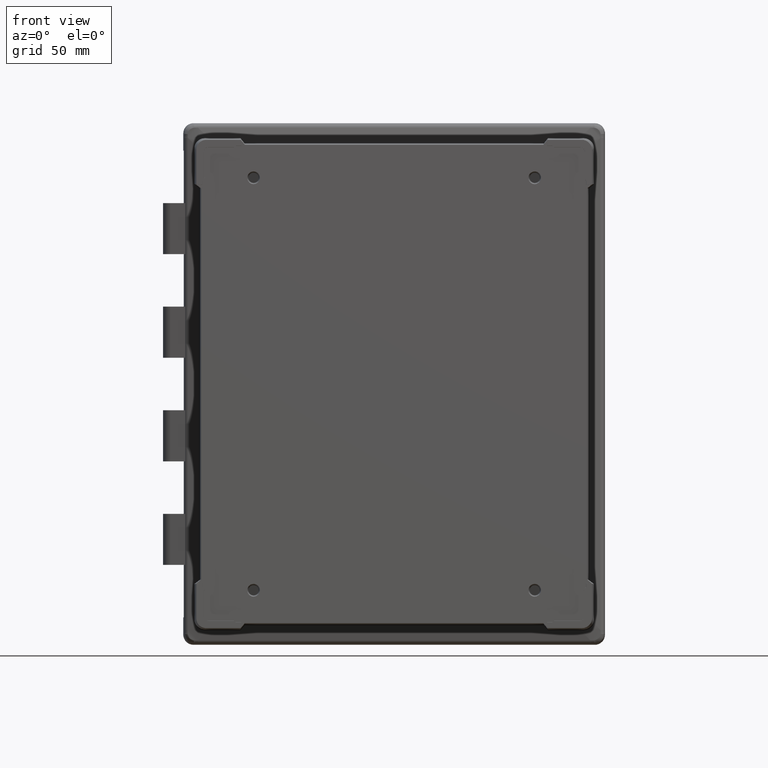
[diagram: clean part render]
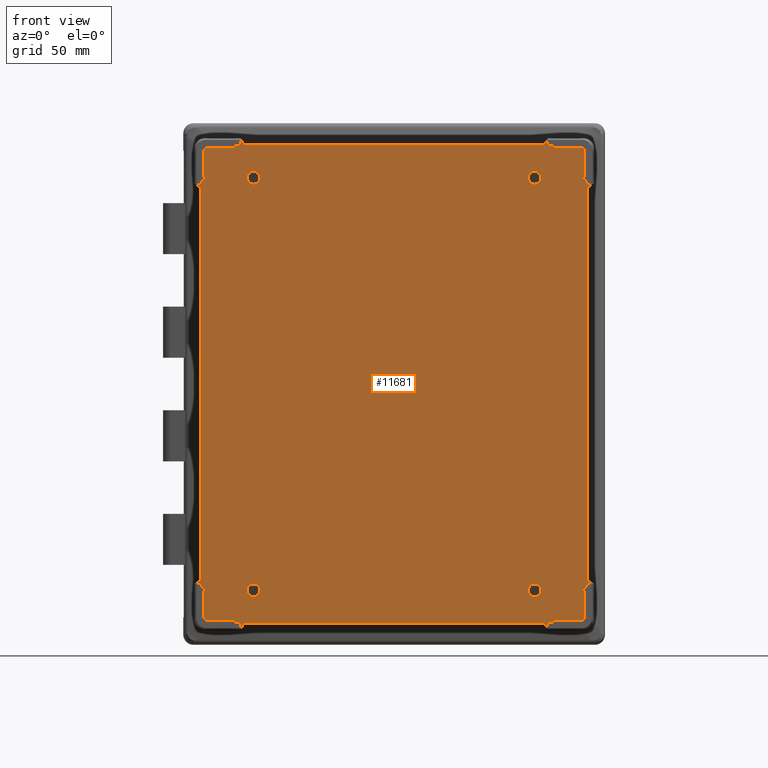
[diagram: same view with one face highlighted and labeled with its STEP entity id]
A machine part, front view. The second image highlights one B-rep face of the part: STEP entity #11681.
In plain terms, the highlighted planar face has unit normal (0, 1, 0).
Its self-contained STEP definition (entity closure, byte-faithful):
#7 = DIRECTION ( 'NONE',  ( -0.0000000000000000000, -0.0000000000000000000, 1.000000000000000000 ) ) ;
#110 = CARTESIAN_POINT ( 'NONE',  ( -80.78099812004026600, -138.5000000000000000, 129.3685209706635200 ) ) ;
#174 = CARTESIAN_POINT ( 'NONE',  ( 103.0246141871660800, -138.5000000000000000, 125.5247093795055200 ) ) ;
#194 = ORIENTED_EDGE ( 'NONE', *, *, #10733, .T. ) ;
#196 = VECTOR ( 'NONE', #13714, 1000.000000000000000 ) ;
#202 = CARTESIAN_POINT ( 'NONE',  ( 78.09164390689808500, -138.5000000000000000, -126.1634734253929400 ) ) ;
#272 = DIRECTION ( 'NONE',  ( 0.6427876096865426900, 0.0000000000000000000, -0.7660444431189751300 ) ) ;
#275 = DIRECTION ( 'NONE',  ( -1.000000000000000000, -0.0000000000000000000, -0.0000000000000000000 ) ) ;
#313 = VERTEX_POINT ( 'NONE', #1869 ) ;
#326 = VECTOR ( 'NONE', #4481, 1000.000000000000100 ) ;
#389 = ORIENTED_EDGE ( 'NONE', *, *, #3282, .T. ) ;
#390 = EDGE_CURVE ( 'NONE', #17906, #17309, #12767, .T. ) ;
#475 = EDGE_CURVE ( 'NONE', #9439, #8476, #11861, .T. ) ;
#509 = DIRECTION ( 'NONE',  ( -0.0000000000000000000, -0.0000000000000000000, -1.000000000000000000 ) ) ;
#585 = DIRECTION ( 'NONE',  ( -0.1045284632676510700, 0.0000000000000000000, 0.9945218953682736200 ) ) ;
#655 = VERTEX_POINT ( 'NONE', #1164 ) ;
#658 = LINE ( 'NONE', #12375, #861 ) ;
#698 = VERTEX_POINT ( 'NONE', #722 ) ;
#722 = CARTESIAN_POINT ( 'NONE',  ( 100.5247093795056800, -138.5000000000000000, -128.0246141871659500 ) ) ;
#744 = VERTEX_POINT ( 'NONE', #11087 ) ;
#753 = CARTESIAN_POINT ( 'NONE',  ( -86.59853017401309200, -138.5000000000000000, 128.0246141871659500 ) ) ;
#769 = CARTESIAN_POINT ( 'NONE',  ( 103.0246141871661100, -138.5000000000000000, -125.5247093795055200 ) ) ;
#790 = EDGE_LOOP ( 'NONE', ( #2847, #17933 ) ) ;
#861 = VECTOR ( 'NONE', #2229, 1000.000000000000200 ) ;
#967 = CARTESIAN_POINT ( 'NONE',  ( 86.59853017401307800, -138.5000000000000000, 128.0246141871659500 ) ) ;
#1022 = EDGE_CURVE ( 'NONE', #4382, #744, #7986, .T. ) ;
#1118 = LINE ( 'NONE', #16022, #11611 ) ;
#1164 = CARTESIAN_POINT ( 'NONE',  ( -107.0071604515845800, -138.5000000000000000, 107.9950795352907700 ) ) ;
#1193 = ORIENTED_EDGE ( 'NONE', *, *, #18567, .T. ) ;
#1280 = CARTESIAN_POINT ( 'NONE',  ( -86.59853017401312100, -138.5000000000000000, -128.0246141871659500 ) ) ;
#1302 = CARTESIAN_POINT ( 'NONE',  ( 85.63787999480283000, -138.5000000000000000, 128.8245189912016100 ) ) ;
#1337 = VERTEX_POINT ( 'NONE', #17441 ) ;
#1348 = ORIENTED_EDGE ( 'NONE', *, *, #12294, .T. ) ;
#1357 = LINE ( 'NONE', #13752, #4104 ) ;
#1386 = ORIENTED_EDGE ( 'NONE', *, *, #1761, .T. ) ;
#1430 = EDGE_CURVE ( 'NONE', #1337, #5696, #7736, .T. ) ;
#1473 = EDGE_CURVE ( 'NONE', #18954, #7945, #18272, .T. ) ;
#1500 = LINE ( 'NONE', #1280, #10660 ) ;
#1514 = EDGE_CURVE ( 'NONE', #8866, #1585, #1769, .T. ) ;
#1556 = DIRECTION ( 'NONE',  ( -0.0000000000000000000, 1.000000000000000000, -0.0000000000000000000 ) ) ;
#1585 = VERTEX_POINT ( 'NONE', #11921 ) ;
#1642 = VECTOR ( 'NONE', #5481, 1000.000000000000100 ) ;
#1664 = DIRECTION ( 'NONE',  ( 0.0000000000000000000, 0.0000000000000000000, -1.000000000000000000 ) ) ;
#1751 = LINE ( 'NONE', #3656, #11561 ) ;
#1761 = EDGE_CURVE ( 'NONE', #18799, #6933, #1751, .T. ) ;
#1764 = VECTOR ( 'NONE', #11109, 1000.000000000000100 ) ;
#1769 = LINE ( 'NONE', #15916, #17581 ) ;
#1801 = CARTESIAN_POINT ( 'NONE',  ( -103.0246141871660900, -138.5000000000000000, 125.5247093795055200 ) ) ;
#1869 = CARTESIAN_POINT ( 'NONE',  ( 104.3797396139640100, -138.5000000000000000, 105.7904116794958500 ) ) ;
#1882 = LINE ( 'NONE', #11408, #12174 ) ;
#1925 = CARTESIAN_POINT ( 'NONE',  ( -85.63787999480284400, -138.5000000000000000, -128.8245189912016400 ) ) ;
#1942 = VERTEX_POINT ( 'NONE', #10070 ) ;
#1986 = ORIENTED_EDGE ( 'NONE', *, *, #3680, .T. ) ;
#2075 = CARTESIAN_POINT ( 'NONE',  ( -100.5247093795056700, -138.5000000000000000, -128.0246141871659500 ) ) ;
#2129 = AXIS2_PLACEMENT_3D ( 'NONE', #11158, #5295, #15526 ) ;
#2177 = CARTESIAN_POINT ( 'NONE',  ( 75.99999999999998600, -138.5000000000000000, -111.5000000000000000 ) ) ;
#2183 = VECTOR ( 'NONE', #4375, 1000.000000000000100 ) ;
#2224 = EDGE_CURVE ( 'NONE', #4567, #10821, #13498, .T. ) ;
#2229 = DIRECTION ( 'NONE',  ( -0.6427876096865554600, -0.0000000000000000000, -0.7660444431189644700 ) ) ;
#2242 = DIRECTION ( 'NONE',  ( -1.000000000000000000, -0.0000000000000000000, -0.0000000000000000000 ) ) ;
#2285 = CARTESIAN_POINT ( 'NONE',  ( -86.57890152874840300, -138.5000000000000000, -127.8378601023748600 ) ) ;
#2314 = LINE ( 'NONE', #4271, #5298 ) ;
#2318 = EDGE_CURVE ( 'NONE', #16565, #13286, #8923, .T. ) ;
#2348 = LINE ( 'NONE', #15857, #8764 ) ;
#2393 = EDGE_CURVE ( 'NONE', #7945, #15721, #11195, .T. ) ;
#2424 = DIRECTION ( 'NONE',  ( 1.000000000000000000, -0.0000000000000000000, 1.620519775671311600E-016 ) ) ;
#2436 = VERTEX_POINT ( 'NONE', #2285 ) ;
#2440 = CARTESIAN_POINT ( 'NONE',  ( 107.0071604515846000, -138.5000000000000000, -107.9950795352907700 ) ) ;
#2503 = CARTESIAN_POINT ( 'NONE',  ( 103.0246141871660800, -138.5000000000000000, 111.5985301740129600 ) ) ;
#2561 = CARTESIAN_POINT ( 'NONE',  ( 82.66057043847250400, -138.5000000000000000, 128.8245189912016100 ) ) ;
#2569 = ORIENTED_EDGE ( 'NONE', *, *, #10296, .T. ) ;
#2605 = AXIS2_PLACEMENT_3D ( 'NONE', #13374, #7448, #1664 ) ;
#2606 = EDGE_CURVE ( 'NONE', #14296, #17906, #10042, .T. ) ;
#2684 = CARTESIAN_POINT ( 'NONE',  ( 75.99999999999998600, -138.5000000000000000, 111.5000000000000000 ) ) ;
#2711 = ORIENTED_EDGE ( 'NONE', *, *, #1022, .T. ) ;
#2777 = VERTEX_POINT ( 'NONE', #10764 ) ;
#2801 = CARTESIAN_POINT ( 'NONE',  ( 102.1543299741918400, -138.5000000000000000, 111.5070596173445100 ) ) ;
#2826 = VERTEX_POINT ( 'NONE', #11022 ) ;
#2847 = ORIENTED_EDGE ( 'NONE', *, *, #18986, .F. ) ;
#2880 = CARTESIAN_POINT ( 'NONE',  ( -82.66057043847257500, -138.5000000000000000, -128.8245189912016400 ) ) ;
#2898 = EDGE_CURVE ( 'NONE', #17981, #7794, #658, .T. ) ;
#2901 = CARTESIAN_POINT ( 'NONE',  ( 86.57890152874840300, -138.5000000000000000, -127.8378601023748300 ) ) ;
#2913 = CARTESIAN_POINT ( 'NONE',  ( 83.11110922711554800, -138.5000000000000000, 133.1111092271154300 ) ) ;
#2975 = DIRECTION ( 'NONE',  ( 5.409679342329089400E-017, 0.0000000000000000000, 1.000000000000000000 ) ) ;
#2978 = DIRECTION ( 'NONE',  ( -0.9945218953682734000, -0.0000000000000000000, 0.1045284632676531400 ) ) ;
#3036 = EDGE_CURVE ( 'NONE', #18930, #18799, #3808, .T. ) ;
#3070 = ORIENTED_EDGE ( 'NONE', *, *, #13464, .T. ) ;
#3082 = CARTESIAN_POINT ( 'NONE',  ( -106.0000000000000000, -138.5000000000000000, 129.3685209706635200 ) ) ;
#3097 = EDGE_CURVE ( 'NONE', #4854, #4382, #12500, .T. ) ;
#3119 = CARTESIAN_POINT ( 'NONE',  ( -83.11110922711557700, -138.5000000000000000, -133.1111092271154300 ) ) ;
#3207 = EDGE_CURVE ( 'NONE', #15464, #15409, #18736, .T. ) ;
#3282 = EDGE_CURVE ( 'NONE', #9547, #18168, #5886, .T. ) ;
#3362 = CARTESIAN_POINT ( 'NONE',  ( 103.0246141871661100, -138.5000000000000000, -111.5985301740129400 ) ) ;
#3380 = CARTESIAN_POINT ( 'NONE',  ( 107.0071604515846000, -138.5000000000000000, -107.9950795352907700 ) ) ;
#3563 = LINE ( 'NONE', #6183, #9990 ) ;
#3570 = ORIENTED_EDGE ( 'NONE', *, *, #17127, .T. ) ;
#3579 = EDGE_CURVE ( 'NONE', #4535, #14085, #12267, .T. ) ;
#3609 = LINE ( 'NONE', #2503, #18756 ) ;
#3649 = EDGE_CURVE ( 'NONE', #15050, #2436, #14332, .T. ) ;
#3656 = CARTESIAN_POINT ( 'NONE',  ( 85.63787999480283000, -138.5000000000000000, -128.8245189912016100 ) ) ;
#3680 = EDGE_CURVE ( 'NONE', #5387, #15050, #1500, .T. ) ;
#3737 = LINE ( 'NONE', #13292, #326 ) ;
#3808 = LINE ( 'NONE', #8713, #8647 ) ;
#3826 = CARTESIAN_POINT ( 'NONE',  ( 101.9891428064521400, -138.5000000000000000, -128.0246141871659500 ) ) ;
#3828 = CARTESIAN_POINT ( 'NONE',  ( 86.59853017401307800, -138.5000000000000000, 128.0246141871659500 ) ) ;
#3864 = FACE_BOUND ( 'NONE', #790, .T. ) ;
#3898 = EDGE_CURVE ( 'NONE', #18061, #17981, #6546, .T. ) ;
#3915 = CARTESIAN_POINT ( 'NONE',  ( 0.0000000000000000000, -138.5000000000000000, 0.0000000000000000000 ) ) ;
#3919 = LINE ( 'NONE', #12798, #12370 ) ;
#3990 = CARTESIAN_POINT ( 'NONE',  ( -78.09164390689797100, -138.5000000000000000, -126.1634734253929700 ) ) ;
#4086 = LINE ( 'NONE', #14640, #17394 ) ;
#4104 = VECTOR ( 'NONE', #5006, 1000.000000000000100 ) ;
#4105 = DIRECTION ( 'NONE',  ( -0.6901728121788987000, -0.0000000000000000000, -0.7236445877149021400 ) ) ;
#4136 = VECTOR ( 'NONE', #17260, 1000.000000000000100 ) ;
#4209 = ORIENTED_EDGE ( 'NONE', *, *, #8003, .T. ) ;
#4271 = CARTESIAN_POINT ( 'NONE',  ( 108.1111092271155800, -138.5000000000000000, -108.1111092271154100 ) ) ;
#4330 = CARTESIAN_POINT ( 'NONE',  ( 103.0246141871660900, -138.5000000000000000, 126.9891428064519700 ) ) ;
#4343 = ORIENTED_EDGE ( 'NONE', *, *, #3898, .T. ) ;
#4375 = DIRECTION ( 'NONE',  ( 0.1045284632676504500, -0.0000000000000000000, 0.9945218953682736200 ) ) ;
#4382 = VERTEX_POINT ( 'NONE', #13373 ) ;
#4400 =( BOUNDED_CURVE ( )  B_SPLINE_CURVE ( 3, ( #11606, #4330, #4464, #19004 ),
 .UNSPECIFIED., .F., .F. ) 
 B_SPLINE_CURVE_WITH_KNOTS ( ( 4, 4 ),
 ( 5.497825219993071500, 7.068545394366095600 ),
 .UNSPECIFIED. ) 
 CURVE ( )  GEOMETRIC_REPRESENTATION_ITEM ( )  RATIONAL_B_SPLINE_CURVE ( ( 1.000000000000000000, 0.8047558030806099000, 0.8047558030806099000, 1.000000000000000000 ) ) 
 REPRESENTATION_ITEM ( '' )  );
#4459 = LINE ( 'NONE', #4579, #14295 ) ;
#4464 = CARTESIAN_POINT ( 'NONE',  ( 101.9891428064521200, -138.5000000000000000, 128.0246141871659500 ) ) ;
#4481 = DIRECTION ( 'NONE',  ( -0.6901728121788979200, 0.0000000000000000000, 0.7236445877149028100 ) ) ;
#4535 = VERTEX_POINT ( 'NONE', #3380 ) ;
#4567 = VERTEX_POINT ( 'NONE', #7898 ) ;
#4579 = CARTESIAN_POINT ( 'NONE',  ( -104.3797396139639800, -138.5000000000000000, -131.0000000000000000 ) ) ;
#4597 = LINE ( 'NONE', #10271, #5990 ) ;
#4621 = CIRCLE ( 'NONE', #13927, 3.449999999999994800 ) ;
#4679 = ORIENTED_EDGE ( 'NONE', *, *, #7745, .T. ) ;
#4690 = CARTESIAN_POINT ( 'NONE',  ( -103.0246141871660900, -138.5000000000000000, 128.0246141871659500 ) ) ;
#4715 = CARTESIAN_POINT ( 'NONE',  ( -80.78099812004028000, -138.5000000000000000, -129.3685209706635200 ) ) ;
#4716 = ORIENTED_EDGE ( 'NONE', *, *, #8747, .T. ) ;
#4738 = VECTOR ( 'NONE', #7814, 1000.000000000000000 ) ;
#4761 = VERTEX_POINT ( 'NONE', #110 ) ;
#4765 = ORIENTED_EDGE ( 'NONE', *, *, #3207, .T. ) ;
#4796 = CIRCLE ( 'NONE', #4816, 3.449999999999994800 ) ;
#4800 = CARTESIAN_POINT ( 'NONE',  ( -85.63787999480281600, -138.5000000000000000, 128.8245189912015900 ) ) ;
#4816 = AXIS2_PLACEMENT_3D ( 'NONE', #2684, #12710, #14191 ) ;
#4854 = VERTEX_POINT ( 'NONE', #6076 ) ;
#4863 = ORIENTED_EDGE ( 'NONE', *, *, #9106, .T. ) ;
#4936 = CARTESIAN_POINT ( 'NONE',  ( 86.59853017401312100, -138.5000000000000000, -128.0246141871659500 ) ) ;
#4941 = LINE ( 'NONE', #3828, #6998 ) ;
#4992 = CARTESIAN_POINT ( 'NONE',  ( -103.0246141871660900, -138.5000000000000000, -125.5247093795055200 ) ) ;
#5006 = DIRECTION ( 'NONE',  ( 0.7660444431189873400, -0.0000000000000000000, -0.6427876096865282600 ) ) ;
#5134 = LINE ( 'NONE', #7953, #6510 ) ;
#5230 = VECTOR ( 'NONE', #4105, 1000.000000000000100 ) ;
#5261 = CARTESIAN_POINT ( 'NONE',  ( -103.8245189912017600, -138.5000000000000000, 109.7558703191100000 ) ) ;
#5295 = DIRECTION ( 'NONE',  ( 0.0000000000000000000, -1.000000000000000000, 0.0000000000000000000 ) ) ;
#5298 = VECTOR ( 'NONE', #5755, 1000.000000000000000 ) ;
#5387 = VERTEX_POINT ( 'NONE', #9057 ) ;
#5390 = DIRECTION ( 'NONE',  ( -0.6901728121788987000, -0.0000000000000000000, -0.7236445877149021400 ) ) ;
#5412 = CARTESIAN_POINT ( 'NONE',  ( 103.0246141871661100, -138.5000000000000000, -111.5985301740129400 ) ) ;
#5440 = CARTESIAN_POINT ( 'NONE',  ( -103.0246141871661200, -138.5000000000000000, -126.9891428064519700 ) ) ;
#5481 = DIRECTION ( 'NONE',  ( 0.6427876096865562400, -0.0000000000000000000, 0.7660444431189639100 ) ) ;
#5517 = CARTESIAN_POINT ( 'NONE',  ( 82.99507953529089800, -138.5000000000000000, 132.0071604515844400 ) ) ;
#5546 = ORIENTED_EDGE ( 'NONE', *, *, #7993, .T. ) ;
#5569 = DIRECTION ( 'NONE',  ( 1.000000000000000000, -0.0000000000000000000, -0.0000000000000000000 ) ) ;
#5580 = VERTEX_POINT ( 'NONE', #9179 ) ;
#5592 = EDGE_CURVE ( 'NONE', #4761, #14296, #15628, .T. ) ;
#5596 = VECTOR ( 'NONE', #9168, 1000.000000000000000 ) ;
#5612 = CARTESIAN_POINT ( 'NONE',  ( 100.5247093795056500, -138.5000000000000000, 128.0246141871659500 ) ) ;
#5630 = VERTEX_POINT ( 'NONE', #11132 ) ;
#5647 = VERTEX_POINT ( 'NONE', #967 ) ;
#5696 = VERTEX_POINT ( 'NONE', #17232 ) ;
#5752 = VECTOR ( 'NONE', #5390, 1000.000000000000100 ) ;
#5755 = DIRECTION ( 'NONE',  ( 0.9945218953682734000, 0.0000000000000000000, -0.1045284632676531700 ) ) ;
#5829 = CARTESIAN_POINT ( 'NONE',  ( -86.59853017401312100, -138.5000000000000000, -128.0246141871659500 ) ) ;
#5886 = LINE ( 'NONE', #6894, #18034 ) ;
#5900 = DIRECTION ( 'NONE',  ( 0.7660444431189761300, -0.0000000000000000000, 0.6427876096865415800 ) ) ;
#5975 = ORIENTED_EDGE ( 'NONE', *, *, #3579, .T. ) ;
#5990 = VECTOR ( 'NONE', #7343, 1000.000000000000000 ) ;
#6076 = CARTESIAN_POINT ( 'NONE',  ( 107.0071604515845700, -138.5000000000000000, 107.9950795352907800 ) ) ;
#6112 = DIRECTION ( 'NONE',  ( -0.0000000000000000000, -0.0000000000000000000, -1.000000000000000000 ) ) ;
#6183 = CARTESIAN_POINT ( 'NONE',  ( 104.3797396139639900, -138.5000000000000000, -131.0000000000000000 ) ) ;
#6189 = ORIENTED_EDGE ( 'NONE', *, *, #3097, .T. ) ;
#6235 = VERTEX_POINT ( 'NONE', #174 ) ;
#6270 = DIRECTION ( 'NONE',  ( 0.0000000000000000000, 0.0000000000000000000, 1.000000000000000000 ) ) ;
#6283 = EDGE_CURVE ( 'NONE', #14193, #6235, #4597, .T. ) ;
#6298 = VERTEX_POINT ( 'NONE', #11663 ) ;
#6445 = CARTESIAN_POINT ( 'NONE',  ( -101.9891428064521200, -138.5000000000000000, -128.0246141871659500 ) ) ;
#6464 = ORIENTED_EDGE ( 'NONE', *, *, #6741, .T. ) ;
#6480 = CARTESIAN_POINT ( 'NONE',  ( 75.99999999999998600, -138.5000000000000000, -108.0500000000000100 ) ) ;
#6487 = VECTOR ( 'NONE', #8707, 1000.000000000000000 ) ;
#6510 = VECTOR ( 'NONE', #12208, 1000.000000000000000 ) ;
#6525 = CARTESIAN_POINT ( 'NONE',  ( -107.0071604515845800, -138.5000000000000000, -107.9950795352907400 ) ) ;
#6531 = LINE ( 'NONE', #4936, #8600 ) ;
#6546 = LINE ( 'NONE', #2913, #2183 ) ;
#6562 = VECTOR ( 'NONE', #8709, 1000.000000000000100 ) ;
#6620 = DIRECTION ( 'NONE',  ( -0.0000000000000000000, -0.0000000000000000000, -1.000000000000000000 ) ) ;
#6625 = DIRECTION ( 'NONE',  ( 0.0000000000000000000, 0.0000000000000000000, -1.000000000000000000 ) ) ;
#6665 = CARTESIAN_POINT ( 'NONE',  ( -82.99507953529089800, -138.5000000000000000, 132.0071604515844400 ) ) ;
#6699 = VERTEX_POINT ( 'NONE', #18485 ) ;
#6700 = VECTOR ( 'NONE', #12470, 1000.000000000000000 ) ;
#6714 = EDGE_CURVE ( 'NONE', #18311, #18671, #4621, .T. ) ;
#6721 = CARTESIAN_POINT ( 'NONE',  ( 86.57890152874836100, -138.5000000000000000, 127.8378601023748600 ) ) ;
#6741 = EDGE_CURVE ( 'NONE', #12522, #8866, #11460, .T. ) ;
#6844 = CARTESIAN_POINT ( 'NONE',  ( 103.0246141871661100, -138.5000000000000000, -125.5247093795055200 ) ) ;
#6855 = EDGE_CURVE ( 'NONE', #744, #10522, #13523, .T. ) ;
#6865 = VECTOR ( 'NONE', #509, 1000.000000000000000 ) ;
#6881 = EDGE_CURVE ( 'NONE', #2777, #17289, #3919, .T. ) ;
#6894 = CARTESIAN_POINT ( 'NONE',  ( 85.63787999480283000, -138.5000000000000000, -128.8245189912016100 ) ) ;
#6933 = VERTEX_POINT ( 'NONE', #2901 ) ;
#6980 = ORIENTED_EDGE ( 'NONE', *, *, #5592, .T. ) ;
#6998 = VECTOR ( 'NONE', #2242, 1000.000000000000000 ) ;
#7017 = CARTESIAN_POINT ( 'NONE',  ( 103.8245189912017600, -138.5000000000000000, 109.7558703191100000 ) ) ;
#7052 = VECTOR ( 'NONE', #8939, 1000.000000000000100 ) ;
#7067 = DIRECTION ( 'NONE',  ( 0.9945218953682735100, -0.0000000000000000000, -0.1045284632676529000 ) ) ;
#7091 = DIRECTION ( 'NONE',  ( -0.9945218953682734000, 0.0000000000000000000, 0.1045284632676531700 ) ) ;
#7151 = ORIENTED_EDGE ( 'NONE', *, *, #16025, .T. ) ;
#7171 = EDGE_LOOP ( 'NONE', ( #3070, #9624 ) ) ;
#7178 = VERTEX_POINT ( 'NONE', #6480 ) ;
#7193 = ORIENTED_EDGE ( 'NONE', *, *, #15738, .T. ) ;
#7240 =( BOUNDED_CURVE ( )  B_SPLINE_CURVE ( 3, ( #9336, #5440, #6445, #2075 ),
 .UNSPECIFIED., .F., .F. ) 
 B_SPLINE_CURVE_WITH_KNOTS ( ( 4, 4 ),
 ( 5.497825219993071500, 7.068545394366095600 ),
 .UNSPECIFIED. ) 
 CURVE ( )  GEOMETRIC_REPRESENTATION_ITEM ( )  RATIONAL_B_SPLINE_CURVE ( ( 1.000000000000000000, 0.8047558030806099000, 0.8047558030806099000, 1.000000000000000000 ) ) 
 REPRESENTATION_ITEM ( '' )  );
#7260 = VECTOR ( 'NONE', #2978, 1000.000000000000000 ) ;
#7289 = LINE ( 'NONE', #3119, #7052 ) ;
#7290 = CARTESIAN_POINT ( 'NONE',  ( -103.0246141871660900, -138.5000000000000000, -111.5985301740129400 ) ) ;
#7296 = DIRECTION ( 'NONE',  ( 1.000000000000000000, -0.0000000000000000000, 1.620519775671311600E-016 ) ) ;
#7302 = ORIENTED_EDGE ( 'NONE', *, *, #9811, .T. ) ;
#7324 = VECTOR ( 'NONE', #9098, 1000.000000000000000 ) ;
#7332 = DIRECTION ( 'NONE',  ( -1.000000000000000000, 0.0000000000000000000, -1.620519775671311600E-016 ) ) ;
#7343 = DIRECTION ( 'NONE',  ( -0.0000000000000000000, -0.0000000000000000000, 1.000000000000000000 ) ) ;
#7366 = CIRCLE ( 'NONE', #11944, 3.449999999999994800 ) ;
#7372 = ORIENTED_EDGE ( 'NONE', *, *, #2318, .T. ) ;
#7446 = ORIENTED_EDGE ( 'NONE', *, *, #6283, .T. ) ;
#7448 = DIRECTION ( 'NONE',  ( -0.0000000000000000000, 1.000000000000000000, -0.0000000000000000000 ) ) ;
#7544 = ORIENTED_EDGE ( 'NONE', *, *, #16917, .F. ) ;
#7591 = CARTESIAN_POINT ( 'NONE',  ( 103.8245189912017600, -138.5000000000000000, -107.6605704384723600 ) ) ;
#7597 = CARTESIAN_POINT ( 'NONE',  ( -82.99691399682171800, -138.5000000000000000, 132.0246141871659500 ) ) ;
#7646 = CARTESIAN_POINT ( 'NONE',  ( -100.5247093795056700, -138.5000000000000000, 128.0246141871659500 ) ) ;
#7655 = LINE ( 'NONE', #15361, #10138 ) ;
#7674 = VERTEX_POINT ( 'NONE', #14544 ) ;
#7736 = CIRCLE ( 'NONE', #10215, 3.449999999999994800 ) ;
#7745 = EDGE_CURVE ( 'NONE', #15409, #5580, #16964, .T. ) ;
#7781 = VECTOR ( 'NONE', #13459, 1000.000000000000000 ) ;
#7794 = VERTEX_POINT ( 'NONE', #12045 ) ;
#7814 = DIRECTION ( 'NONE',  ( -0.9945218953682732900, 0.0000000000000000000, -0.1045284632676542100 ) ) ;
#7830 =( BOUNDED_CURVE ( )  B_SPLINE_CURVE ( 3, ( #10934, #3826, #13876, #769 ),
 .UNSPECIFIED., .F., .F. ) 
 B_SPLINE_CURVE_WITH_KNOTS ( ( 4, 4 ),
 ( 5.497825219993076800, 7.068545394366101000 ),
 .UNSPECIFIED. ) 
 CURVE ( )  GEOMETRIC_REPRESENTATION_ITEM ( )  RATIONAL_B_SPLINE_CURVE ( ( 1.000000000000000000, 0.8047558030806099000, 0.8047558030806099000, 1.000000000000000000 ) ) 
 REPRESENTATION_ITEM ( '' )  );
#7898 = CARTESIAN_POINT ( 'NONE',  ( -103.0246141871660900, -138.5000000000000000, 125.5247093795055200 ) ) ;
#7945 = VERTEX_POINT ( 'NONE', #15301 ) ;
#7953 = CARTESIAN_POINT ( 'NONE',  ( -85.63787999480284400, -138.5000000000000000, -128.8245189912016400 ) ) ;
#7986 = LINE ( 'NONE', #11488, #18071 ) ;
#7993 = EDGE_CURVE ( 'NONE', #8476, #16565, #14401, .T. ) ;
#8003 = EDGE_CURVE ( 'NONE', #655, #6298, #1357, .T. ) ;
#8022 = VECTOR ( 'NONE', #9804, 1000.000000000000100 ) ;
#8035 = ORIENTED_EDGE ( 'NONE', *, *, #15698, .T. ) ;
#8349 = EDGE_CURVE ( 'NONE', #313, #4854, #4086, .T. ) ;
#8376 = CARTESIAN_POINT ( 'NONE',  ( -103.8245189912017600, -138.5000000000000000, 109.7558703191100000 ) ) ;
#8394 = CARTESIAN_POINT ( 'NONE',  ( 85.63787999480283000, -138.5000000000000000, -128.8245189912016100 ) ) ;
#8438 = DIRECTION ( 'NONE',  ( 0.0000000000000000000, -0.0000000000000000000, 1.000000000000000000 ) ) ;
#8467 = CARTESIAN_POINT ( 'NONE',  ( -85.63787999480284400, -138.5000000000000000, -128.8245189912016400 ) ) ;
#8476 = VERTEX_POINT ( 'NONE', #6525 ) ;
#8600 = VECTOR ( 'NONE', #12273, 1000.000000000000000 ) ;
#8615 = ORIENTED_EDGE ( 'NONE', *, *, #2606, .T. ) ;
#8630 = LINE ( 'NONE', #202, #15023 ) ;
#8647 = VECTOR ( 'NONE', #7296, 1000.000000000000000 ) ;
#8693 = DIRECTION ( 'NONE',  ( 1.000000000000000000, 0.0000000000000000000, -6.857916915574302400E-019 ) ) ;
#8700 = FACE_BOUND ( 'NONE', #10696, .T. ) ;
#8706 = DIRECTION ( 'NONE',  ( -1.065315479650525400E-016, 0.0000000000000000000, -1.000000000000000000 ) ) ;
#8707 = DIRECTION ( 'NONE',  ( -0.9945218953682734000, -0.0000000000000000000, -0.1045284632676531400 ) ) ;
#8709 = DIRECTION ( 'NONE',  ( 0.1045284632676486000, -0.0000000000000000000, 0.9945218953682738400 ) ) ;
#8713 = CARTESIAN_POINT ( 'NONE',  ( 85.63787999480283000, -138.5000000000000000, -128.8245189912016100 ) ) ;
#8747 = EDGE_CURVE ( 'NONE', #18168, #12522, #7289, .T. ) ;
#8760 = ORIENTED_EDGE ( 'NONE', *, *, #15858, .T. ) ;
#8764 = VECTOR ( 'NONE', #7091, 1000.000000000000000 ) ;
#8866 = VERTEX_POINT ( 'NONE', #4715 ) ;
#8884 = EDGE_LOOP ( 'NONE', ( #14022, #18175 ) ) ;
#8923 = LINE ( 'NONE', #10854, #6865 ) ;
#8939 = DIRECTION ( 'NONE',  ( -0.1045284632676503200, 0.0000000000000000000, -0.9945218953682736200 ) ) ;
#8958 = EDGE_CURVE ( 'NONE', #6699, #5630, #14832, .T. ) ;
#9057 = CARTESIAN_POINT ( 'NONE',  ( -100.5247093795056700, -138.5000000000000000, -128.0246141871659500 ) ) ;
#9098 = DIRECTION ( 'NONE',  ( -0.0000000000000000000, -0.0000000000000000000, -1.000000000000000000 ) ) ;
#9106 = EDGE_CURVE ( 'NONE', #1942, #12582, #18504, .T. ) ;
#9168 = DIRECTION ( 'NONE',  ( 0.6901728121788971400, -0.0000000000000000000, -0.7236445877149035900 ) ) ;
#9179 = CARTESIAN_POINT ( 'NONE',  ( -100.5247093795056700, -138.5000000000000000, 128.0246141871659500 ) ) ;
#9188 = CARTESIAN_POINT ( 'NONE',  ( 103.0246141871660800, -138.5000000000000000, 111.5985301740129600 ) ) ;
#9194 = VERTEX_POINT ( 'NONE', #1302 ) ;
#9275 = CARTESIAN_POINT ( 'NONE',  ( 82.66057043847254700, -138.5000000000000000, -128.8245189912016100 ) ) ;
#9295 = DIRECTION ( 'NONE',  ( 0.0000000000000000000, 0.0000000000000000000, -1.000000000000000000 ) ) ;
#9336 = CARTESIAN_POINT ( 'NONE',  ( -103.0246141871660900, -138.5000000000000000, -125.5247093795055200 ) ) ;
#9373 = FACE_BOUND ( 'NONE', #7171, .T. ) ;
#9408 = VECTOR ( 'NONE', #7332, 1000.000000000000000 ) ;
#9439 = VERTEX_POINT ( 'NONE', #12397 ) ;
#9533 = EDGE_CURVE ( 'NONE', #5696, #1337, #4796, .T. ) ;
#9547 = VERTEX_POINT ( 'NONE', #8467 ) ;
#9624 = ORIENTED_EDGE ( 'NONE', *, *, #8958, .T. ) ;
#9692 = CARTESIAN_POINT ( 'NONE',  ( -86.57890152874837500, -138.5000000000000000, 127.8378601023748000 ) ) ;
#9804 = DIRECTION ( 'NONE',  ( 0.9945218953682734000, 0.0000000000000000000, 0.1045284632676533300 ) ) ;
#9811 = EDGE_CURVE ( 'NONE', #12582, #18240, #12385, .T. ) ;
#9825 = DIRECTION ( 'NONE',  ( 0.0000000000000000000, -1.000000000000000000, 0.0000000000000000000 ) ) ;
#9877 = DIRECTION ( 'NONE',  ( -0.7660444431189862300, -0.0000000000000000000, -0.6427876096865295900 ) ) ;
#9918 = ORIENTED_EDGE ( 'NONE', *, *, #3649, .T. ) ;
#9957 = EDGE_CURVE ( 'NONE', #18595, #18954, #18833, .T. ) ;
#9990 = VECTOR ( 'NONE', #2975, 1000.000000000000000 ) ;
#10042 = LINE ( 'NONE', #7597, #7781 ) ;
#10070 = CARTESIAN_POINT ( 'NONE',  ( -102.1543299741918400, -138.5000000000000000, 111.5070596173445100 ) ) ;
#10113 = ORIENTED_EDGE ( 'NONE', *, *, #16169, .T. ) ;
#10138 = VECTOR ( 'NONE', #17164, 1000.000000000000000 ) ;
#10179 = EDGE_CURVE ( 'NONE', #7674, #7178, #7366, .T. ) ;
#10215 = AXIS2_PLACEMENT_3D ( 'NONE', #13138, #1556, #11798 ) ;
#10232 = DIRECTION ( 'NONE',  ( 0.0000000000000000000, 0.0000000000000000000, 1.000000000000000000 ) ) ;
#10254 = CARTESIAN_POINT ( 'NONE',  ( -103.8245189912017600, -138.5000000000000000, -107.6605704384723600 ) ) ;
#10264 = CARTESIAN_POINT ( 'NONE',  ( -102.1543299741918700, -138.5000000000000000, -111.5070596173444800 ) ) ;
#10271 = CARTESIAN_POINT ( 'NONE',  ( 103.0246141871660800, -138.5000000000000000, 128.0246141871659500 ) ) ;
#10296 = EDGE_CURVE ( 'NONE', #17309, #15464, #10325, .T. ) ;
#10318 = ORIENTED_EDGE ( 'NONE', *, *, #10581, .T. ) ;
#10325 = LINE ( 'NONE', #5261, #5752 ) ;
#10336 = VERTEX_POINT ( 'NONE', #6721 ) ;
#10424 = CARTESIAN_POINT ( 'NONE',  ( -82.99507953529092700, -138.5000000000000000, -132.0071604515844400 ) ) ;
#10522 = VERTEX_POINT ( 'NONE', #2801 ) ;
#10534 = CARTESIAN_POINT ( 'NONE',  ( 103.8245189912017600, -138.5000000000000000, -109.7558703191100000 ) ) ;
#10576 = ORIENTED_EDGE ( 'NONE', *, *, #17310, .T. ) ;
#10581 = EDGE_CURVE ( 'NONE', #10819, #4535, #2314, .T. ) ;
#10646 = CARTESIAN_POINT ( 'NONE',  ( 104.3797396139639900, -138.5000000000000000, -105.7904116794957900 ) ) ;
#10660 = VECTOR ( 'NONE', #12958, 1000.000000000000000 ) ;
#10696 = EDGE_LOOP ( 'NONE', ( #15173, #7544 ) ) ;
#10733 = EDGE_CURVE ( 'NONE', #9194, #18061, #15345, .T. ) ;
#10764 = CARTESIAN_POINT ( 'NONE',  ( -103.0246141871660900, -138.5000000000000000, -111.5985301740129400 ) ) ;
#10819 = VERTEX_POINT ( 'NONE', #7591 ) ;
#10821 = VERTEX_POINT ( 'NONE', #16823 ) ;
#10854 = CARTESIAN_POINT ( 'NONE',  ( -103.8245189912017600, -138.5000000000000000, -109.7558703191100000 ) ) ;
#10934 = CARTESIAN_POINT ( 'NONE',  ( 100.5247093795056800, -138.5000000000000000, -128.0246141871659500 ) ) ;
#10956 = CARTESIAN_POINT ( 'NONE',  ( 85.63787999480283000, -138.5000000000000000, 128.8245189912016100 ) ) ;
#11013 = CARTESIAN_POINT ( 'NONE',  ( -82.99507953529089800, -138.5000000000000000, 132.0071604515844400 ) ) ;
#11022 = CARTESIAN_POINT ( 'NONE',  ( 86.59853017401312100, -138.5000000000000000, -128.0246141871659500 ) ) ;
#11074 = VERTEX_POINT ( 'NONE', #5612 ) ;
#11087 = CARTESIAN_POINT ( 'NONE',  ( 103.8245189912017600, -138.5000000000000000, 109.7558703191100000 ) ) ;
#11109 = DIRECTION ( 'NONE',  ( -0.1045284632676504500, -0.0000000000000000000, 0.9945218953682736200 ) ) ;
#11132 = CARTESIAN_POINT ( 'NONE',  ( -75.99999999999998600, -138.5000000000000000, -114.9500000000000000 ) ) ;
#11140 = CARTESIAN_POINT ( 'NONE',  ( 75.99999999999998600, -138.5000000000000000, -111.5000000000000000 ) ) ;
#11153 = DIRECTION ( 'NONE',  ( 0.0000000000000000000, 0.0000000000000000000, 1.000000000000000000 ) ) ;
#11158 = CARTESIAN_POINT ( 'NONE',  ( -75.99999999999998600, -138.5000000000000000, 111.5000000000000000 ) ) ;
#11191 = ORIENTED_EDGE ( 'NONE', *, *, #2898, .T. ) ;
#11195 = LINE ( 'NONE', #8394, #11645 ) ;
#11209 = ORIENTED_EDGE ( 'NONE', *, *, #17343, .T. ) ;
#11260 = DIRECTION ( 'NONE',  ( 0.6901728121788979200, 0.0000000000000000000, 0.7236445877149028100 ) ) ;
#11408 = CARTESIAN_POINT ( 'NONE',  ( 103.0246141871661100, -138.5000000000000000, -128.0246141871659500 ) ) ;
#11460 = LINE ( 'NONE', #3990, #1642 ) ;
#11488 = CARTESIAN_POINT ( 'NONE',  ( 103.8245189912017600, -138.5000000000000000, -109.7558703191100000 ) ) ;
#11523 = LINE ( 'NONE', #15106, #14063 ) ;
#11540 = CARTESIAN_POINT ( 'NONE',  ( -75.99999999999998600, -138.5000000000000000, 114.9500000000000000 ) ) ;
#11547 = CARTESIAN_POINT ( 'NONE',  ( -85.98249945646250600, -138.5000000000000000, -122.1634734253929700 ) ) ;
#11561 = VECTOR ( 'NONE', #11260, 1000.000000000000100 ) ;
#11606 = CARTESIAN_POINT ( 'NONE',  ( 103.0246141871660800, -138.5000000000000000, 125.5247093795055200 ) ) ;
#11611 = VECTOR ( 'NONE', #7067, 999.9999999999998900 ) ;
#11631 = FACE_OUTER_BOUND ( 'NONE', #17702, .T. ) ;
#11645 = VECTOR ( 'NONE', #15402, 1000.000000000000100 ) ;
#11663 = CARTESIAN_POINT ( 'NONE',  ( -104.3797396139639500, -138.5000000000000000, 105.7904116794958600 ) ) ;
#11666 = ORIENTED_EDGE ( 'NONE', *, *, #15105, .T. ) ;
#11681 = ADVANCED_FACE ( 'NONE', ( #9373, #8700, #11631, #3864, #18997 ), #12792, .F. ) ;
#11734 = ORIENTED_EDGE ( 'NONE', *, *, #2393, .T. ) ;
#11798 = DIRECTION ( 'NONE',  ( 0.0000000000000000000, 0.0000000000000000000, 1.000000000000000000 ) ) ;
#11861 = LINE ( 'NONE', #12675, #16926 ) ;
#11862 = EDGE_CURVE ( 'NONE', #10821, #1942, #1118, .T. ) ;
#11921 = CARTESIAN_POINT ( 'NONE',  ( 80.78099812004032300, -138.5000000000000000, -129.3685209706635200 ) ) ;
#11939 = ORIENTED_EDGE ( 'NONE', *, *, #13492, .T. ) ;
#11944 = AXIS2_PLACEMENT_3D ( 'NONE', #2177, #18075, #9295 ) ;
#11950 = AXIS2_PLACEMENT_3D ( 'NONE', #11140, #15700, #15755 ) ;
#12036 = CIRCLE ( 'NONE', #2605, 3.449999999999994800 ) ;
#12045 = CARTESIAN_POINT ( 'NONE',  ( 80.78099812004025200, -138.5000000000000000, 129.3685209706635200 ) ) ;
#12079 = CARTESIAN_POINT ( 'NONE',  ( 107.0246141871660800, -138.5000000000000000, 107.9969139968216000 ) ) ;
#12174 = VECTOR ( 'NONE', #5569, 1000.000000000000000 ) ;
#12192 = LINE ( 'NONE', #10534, #16337 ) ;
#12208 = DIRECTION ( 'NONE',  ( 0.6901728121788971400, -0.0000000000000000000, -0.7236445877149035900 ) ) ;
#12239 = DIRECTION ( 'NONE',  ( -0.0000000000000000000, 1.000000000000000000, -0.0000000000000000000 ) ) ;
#12267 = LINE ( 'NONE', #2440, #15945 ) ;
#12270 = CARTESIAN_POINT ( 'NONE',  ( -75.99999999999998600, -138.5000000000000000, 108.0500000000000100 ) ) ;
#12273 = DIRECTION ( 'NONE',  ( 0.1045284632676509500, -0.0000000000000000000, -0.9945218953682736200 ) ) ;
#12294 = EDGE_CURVE ( 'NONE', #10522, #14193, #3609, .T. ) ;
#12370 = VECTOR ( 'NONE', #6112, 1000.000000000000000 ) ;
#12375 = CARTESIAN_POINT ( 'NONE',  ( 78.09164390689792900, -138.5000000000000000, 126.1634734253929400 ) ) ;
#12385 = LINE ( 'NONE', #13901, #14014 ) ;
#12397 = CARTESIAN_POINT ( 'NONE',  ( -104.3797396139639800, -138.5000000000000000, -105.7904116794958500 ) ) ;
#12470 = DIRECTION ( 'NONE',  ( -0.6427876096865530200, -0.0000000000000000000, 0.7660444431189665800 ) ) ;
#12500 = LINE ( 'NONE', #12079, #4738 ) ;
#12522 = VERTEX_POINT ( 'NONE', #10424 ) ;
#12582 = VERTEX_POINT ( 'NONE', #15150 ) ;
#12646 = DIRECTION ( 'NONE',  ( -0.7660444431189757900, 0.0000000000000000000, 0.6427876096865420300 ) ) ;
#12675 = CARTESIAN_POINT ( 'NONE',  ( -107.0071604515845800, -138.5000000000000000, -107.9950795352907600 ) ) ;
#12710 = DIRECTION ( 'NONE',  ( -0.0000000000000000000, 1.000000000000000000, -0.0000000000000000000 ) ) ;
#12767 = LINE ( 'NONE', #10956, #196 ) ;
#12770 = DIRECTION ( 'NONE',  ( 0.9945218953682734000, -0.0000000000000000000, 0.1045284632676541200 ) ) ;
#12792 = PLANE ( 'NONE',  #17131 ) ;
#12798 = CARTESIAN_POINT ( 'NONE',  ( -103.0246141871660900, -138.5000000000000000, -128.0246141871659500 ) ) ;
#12958 = DIRECTION ( 'NONE',  ( 1.000000000000000000, -0.0000000000000000000, -0.0000000000000000000 ) ) ;
#13094 = VERTEX_POINT ( 'NONE', #10264 ) ;
#13138 = CARTESIAN_POINT ( 'NONE',  ( 75.99999999999998600, -138.5000000000000000, 111.5000000000000000 ) ) ;
#13286 = VERTEX_POINT ( 'NONE', #18413 ) ;
#13292 = CARTESIAN_POINT ( 'NONE',  ( 103.8245189912017600, -138.5000000000000000, 109.7558703191100000 ) ) ;
#13296 = CARTESIAN_POINT ( 'NONE',  ( -103.0246141871661200, -138.5000000000000000, 126.9891428064519700 ) ) ;
#13365 = ORIENTED_EDGE ( 'NONE', *, *, #13484, .T. ) ;
#13373 = CARTESIAN_POINT ( 'NONE',  ( 103.8245189912017600, -138.5000000000000000, 107.6605704384723800 ) ) ;
#13374 = CARTESIAN_POINT ( 'NONE',  ( -75.99999999999998600, -138.5000000000000000, -111.5000000000000000 ) ) ;
#13459 = DIRECTION ( 'NONE',  ( 0.1045284632676509200, 0.0000000000000000000, -0.9945218953682736200 ) ) ;
#13464 = EDGE_CURVE ( 'NONE', #5630, #6699, #12036, .T. ) ;
#13484 = EDGE_CURVE ( 'NONE', #1585, #16395, #8630, .T. ) ;
#13492 = EDGE_CURVE ( 'NONE', #5580, #4567, #18633, .T. ) ;
#13498 = LINE ( 'NONE', #17861, #7324 ) ;
#13523 = LINE ( 'NONE', #7017, #4136 ) ;
#13560 = CARTESIAN_POINT ( 'NONE',  ( 103.8245189912017600, -138.5000000000000000, -109.7558703191100000 ) ) ;
#13626 = VECTOR ( 'NONE', #17874, 1000.000000000000000 ) ;
#13714 = DIRECTION ( 'NONE',  ( -1.000000000000000000, 0.0000000000000000000, -1.620519775671311600E-016 ) ) ;
#13731 = EDGE_CURVE ( 'NONE', #11074, #5647, #4941, .T. ) ;
#13752 = CARTESIAN_POINT ( 'NONE',  ( -101.1634734253929500, -138.5000000000000000, 103.0916439068980600 ) ) ;
#13759 = VECTOR ( 'NONE', #7, 1000.000000000000000 ) ;
#13826 = ORIENTED_EDGE ( 'NONE', *, *, #17969, .T. ) ;
#13876 = CARTESIAN_POINT ( 'NONE',  ( 103.0246141871661200, -138.5000000000000000, -126.9891428064519700 ) ) ;
#13901 = CARTESIAN_POINT ( 'NONE',  ( -103.8245189912017600, -138.5000000000000000, -109.7558703191100000 ) ) ;
#13927 = AXIS2_PLACEMENT_3D ( 'NONE', #18612, #9825, #11153 ) ;
#13970 = CARTESIAN_POINT ( 'NONE',  ( 82.99507953529092700, -138.5000000000000000, -132.0071604515845000 ) ) ;
#14014 = VECTOR ( 'NONE', #6620, 1000.000000000000000 ) ;
#14022 = ORIENTED_EDGE ( 'NONE', *, *, #9533, .T. ) ;
#14062 = EDGE_CURVE ( 'NONE', #14085, #313, #3563, .T. ) ;
#14063 = VECTOR ( 'NONE', #585, 1000.000000000000000 ) ;
#14085 = VERTEX_POINT ( 'NONE', #10646 ) ;
#14191 = DIRECTION ( 'NONE',  ( 0.0000000000000000000, 0.0000000000000000000, 1.000000000000000000 ) ) ;
#14193 = VERTEX_POINT ( 'NONE', #9188 ) ;
#14261 = CARTESIAN_POINT ( 'NONE',  ( -107.0246141871660900, -138.5000000000000000, -107.9969139968215800 ) ) ;
#14295 = VECTOR ( 'NONE', #8706, 1000.000000000000000 ) ;
#14296 = VERTEX_POINT ( 'NONE', #11013 ) ;
#14332 = LINE ( 'NONE', #11547, #6562 ) ;
#14401 = LINE ( 'NONE', #14261, #8022 ) ;
#14519 = ORIENTED_EDGE ( 'NONE', *, *, #8349, .T. ) ;
#14544 = CARTESIAN_POINT ( 'NONE',  ( 75.99999999999998600, -138.5000000000000000, -114.9500000000000000 ) ) ;
#14557 = CARTESIAN_POINT ( 'NONE',  ( 97.16347342539296500, -138.5000000000000000, -110.9824994564622800 ) ) ;
#14640 = CARTESIAN_POINT ( 'NONE',  ( 107.0071604515845700, -138.5000000000000000, 107.9950795352907800 ) ) ;
#14712 = ORIENTED_EDGE ( 'NONE', *, *, #1473, .T. ) ;
#14730 = CARTESIAN_POINT ( 'NONE',  ( -101.9891428064521200, -138.5000000000000000, 128.0246141871659500 ) ) ;
#14832 = CIRCLE ( 'NONE', #17079, 3.449999999999994800 ) ;
#15009 = CIRCLE ( 'NONE', #11950, 3.449999999999994800 ) ;
#15023 = VECTOR ( 'NONE', #272, 1000.000000000000200 ) ;
#15050 = VERTEX_POINT ( 'NONE', #5829 ) ;
#15092 = ORIENTED_EDGE ( 'NONE', *, *, #6855, .T. ) ;
#15105 = EDGE_CURVE ( 'NONE', #6298, #9439, #4459, .T. ) ;
#15106 = CARTESIAN_POINT ( 'NONE',  ( 82.99691399682174600, -138.5000000000000000, -132.0246141871659500 ) ) ;
#15150 = CARTESIAN_POINT ( 'NONE',  ( -103.8245189912017600, -138.5000000000000000, 109.7558703191100000 ) ) ;
#15173 = ORIENTED_EDGE ( 'NONE', *, *, #10179, .F. ) ;
#15289 = EDGE_CURVE ( 'NONE', #17289, #5387, #7240, .T. ) ;
#15301 = CARTESIAN_POINT ( 'NONE',  ( 102.1543299741918700, -138.5000000000000000, -111.5070596173444800 ) ) ;
#15316 = ORIENTED_EDGE ( 'NONE', *, *, #9957, .T. ) ;
#15345 = LINE ( 'NONE', #18938, #9408 ) ;
#15361 = CARTESIAN_POINT ( 'NONE',  ( 85.98249945646242100, -138.5000000000000000, 122.1634734253929700 ) ) ;
#15402 = DIRECTION ( 'NONE',  ( 0.6901728121788979200, 0.0000000000000000000, 0.7236445877149028100 ) ) ;
#15409 = VERTEX_POINT ( 'NONE', #17121 ) ;
#15464 = VERTEX_POINT ( 'NONE', #9692 ) ;
#15526 = DIRECTION ( 'NONE',  ( 0.0000000000000000000, 0.0000000000000000000, 1.000000000000000000 ) ) ;
#15578 = VECTOR ( 'NONE', #275, 1000.000000000000000 ) ;
#15628 = LINE ( 'NONE', #6665, #6700 ) ;
#15647 = DIRECTION ( 'NONE',  ( 0.0000000000000000000, 1.000000000000000000, 0.0000000000000000000 ) ) ;
#15675 = EDGE_CURVE ( 'NONE', #10336, #9194, #3737, .T. ) ;
#15698 = EDGE_CURVE ( 'NONE', #13286, #13094, #5134, .T. ) ;
#15700 = DIRECTION ( 'NONE',  ( 0.0000000000000000000, -1.000000000000000000, 0.0000000000000000000 ) ) ;
#15721 = VERTEX_POINT ( 'NONE', #13560 ) ;
#15738 = EDGE_CURVE ( 'NONE', #2436, #9547, #16826, .T. ) ;
#15755 = DIRECTION ( 'NONE',  ( 0.0000000000000000000, 0.0000000000000000000, -1.000000000000000000 ) ) ;
#15837 = ORIENTED_EDGE ( 'NONE', *, *, #3036, .T. ) ;
#15857 = CARTESIAN_POINT ( 'NONE',  ( -108.1111092271155500, -138.5000000000000000, 108.1111092271154300 ) ) ;
#15858 = EDGE_CURVE ( 'NONE', #698, #18595, #7830, .T. ) ;
#15916 = CARTESIAN_POINT ( 'NONE',  ( -106.0000000000000300, -138.5000000000000000, -129.3685209706635200 ) ) ;
#15941 = CARTESIAN_POINT ( 'NONE',  ( -103.8245189912017600, -138.5000000000000000, 107.6605704384724300 ) ) ;
#15945 = VECTOR ( 'NONE', #12646, 1000.000000000000100 ) ;
#16022 = CARTESIAN_POINT ( 'NONE',  ( -97.16347342539293700, -138.5000000000000000, 110.9824994564623100 ) ) ;
#16025 = EDGE_CURVE ( 'NONE', #13094, #2777, #16112, .T. ) ;
#16061 = EDGE_CURVE ( 'NONE', #6235, #11074, #4400, .T. ) ;
#16112 = LINE ( 'NONE', #7290, #6487 ) ;
#16169 = EDGE_CURVE ( 'NONE', #15721, #10819, #12192, .T. ) ;
#16289 = ORIENTED_EDGE ( 'NONE', *, *, #11862, .T. ) ;
#16337 = VECTOR ( 'NONE', #6270, 1000.000000000000000 ) ;
#16395 = VERTEX_POINT ( 'NONE', #13970 ) ;
#16565 = VERTEX_POINT ( 'NONE', #10254 ) ;
#16748 = CARTESIAN_POINT ( 'NONE',  ( -75.99999999999998600, -138.5000000000000000, -111.5000000000000000 ) ) ;
#16823 = CARTESIAN_POINT ( 'NONE',  ( -103.0246141871660900, -138.5000000000000000, 111.5985301740129600 ) ) ;
#16826 = LINE ( 'NONE', #1925, #5596 ) ;
#16889 = ORIENTED_EDGE ( 'NONE', *, *, #475, .T. ) ;
#16917 = EDGE_CURVE ( 'NONE', #7178, #7674, #15009, .T. ) ;
#16926 = VECTOR ( 'NONE', #9877, 1000.000000000000000 ) ;
#16964 = LINE ( 'NONE', #4690, #15578 ) ;
#17048 = ORIENTED_EDGE ( 'NONE', *, *, #16061, .T. ) ;
#17079 = AXIS2_PLACEMENT_3D ( 'NONE', #16748, #12239, #6625 ) ;
#17121 = CARTESIAN_POINT ( 'NONE',  ( -86.59853017401309200, -138.5000000000000000, 128.0246141871659500 ) ) ;
#17127 = EDGE_CURVE ( 'NONE', #7794, #4761, #17543, .T. ) ;
#17131 = AXIS2_PLACEMENT_3D ( 'NONE', #3915, #15647, #8438 ) ;
#17149 = ORIENTED_EDGE ( 'NONE', *, *, #1514, .T. ) ;
#17164 = DIRECTION ( 'NONE',  ( -0.1045284632676555900, -0.0000000000000000000, -0.9945218953682731800 ) ) ;
#17208 = ORIENTED_EDGE ( 'NONE', *, *, #13731, .T. ) ;
#17232 = CARTESIAN_POINT ( 'NONE',  ( 75.99999999999998600, -138.5000000000000000, 114.9500000000000000 ) ) ;
#17233 = CIRCLE ( 'NONE', #2129, 3.449999999999994800 ) ;
#17260 = DIRECTION ( 'NONE',  ( -0.6901728121788979200, 0.0000000000000000000, 0.7236445877149028100 ) ) ;
#17289 = VERTEX_POINT ( 'NONE', #4992 ) ;
#17309 = VERTEX_POINT ( 'NONE', #4800 ) ;
#17310 = EDGE_CURVE ( 'NONE', #16395, #18930, #11523, .T. ) ;
#17321 = ORIENTED_EDGE ( 'NONE', *, *, #14062, .T. ) ;
#17343 = EDGE_CURVE ( 'NONE', #6933, #2826, #6531, .T. ) ;
#17394 = VECTOR ( 'NONE', #5900, 1000.000000000000000 ) ;
#17441 = CARTESIAN_POINT ( 'NONE',  ( 75.99999999999998600, -138.5000000000000000, 108.0500000000000100 ) ) ;
#17543 = LINE ( 'NONE', #3082, #13626 ) ;
#17549 = ORIENTED_EDGE ( 'NONE', *, *, #15675, .T. ) ;
#17581 = VECTOR ( 'NONE', #8693, 1000.000000000000000 ) ;
#17696 = ORIENTED_EDGE ( 'NONE', *, *, #6881, .T. ) ;
#17702 = EDGE_LOOP ( 'NONE', ( #10113, #10318, #5975, #17321, #14519, #6189, #2711, #15092, #1348, #7446, #17048, #17208, #13826, #17549, #194, #4343, #11191, #3570, #6980, #8615, #18825, #2569, #4765, #4679, #11939, #18300, #16289, #4863, #7302, #17858, #4209, #11666, #16889, #5546, #7372, #8035, #7151, #17696, #18130, #1986, #9918, #7193, #389, #4716, #6464, #17149, #13365, #10576, #15837, #1386, #11209, #1193, #8760, #15316, #14712, #11734 ) ) ;
#17787 = CARTESIAN_POINT ( 'NONE',  ( 85.63787999480283000, -138.5000000000000000, -128.8245189912016100 ) ) ;
#17858 = ORIENTED_EDGE ( 'NONE', *, *, #18527, .T. ) ;
#17861 = CARTESIAN_POINT ( 'NONE',  ( -103.0246141871660900, -138.5000000000000000, 111.5985301740129600 ) ) ;
#17874 = DIRECTION ( 'NONE',  ( -1.000000000000000000, 0.0000000000000000000, 0.0000000000000000000 ) ) ;
#17906 = VERTEX_POINT ( 'NONE', #18266 ) ;
#17933 = ORIENTED_EDGE ( 'NONE', *, *, #6714, .F. ) ;
#17969 = EDGE_CURVE ( 'NONE', #5647, #10336, #7655, .T. ) ;
#17981 = VERTEX_POINT ( 'NONE', #5517 ) ;
#18034 = VECTOR ( 'NONE', #2424, 1000.000000000000000 ) ;
#18061 = VERTEX_POINT ( 'NONE', #2561 ) ;
#18071 = VECTOR ( 'NONE', #10232, 1000.000000000000000 ) ;
#18075 = DIRECTION ( 'NONE',  ( 0.0000000000000000000, -1.000000000000000000, 0.0000000000000000000 ) ) ;
#18130 = ORIENTED_EDGE ( 'NONE', *, *, #15289, .T. ) ;
#18168 = VERTEX_POINT ( 'NONE', #2880 ) ;
#18175 = ORIENTED_EDGE ( 'NONE', *, *, #1430, .T. ) ;
#18240 = VERTEX_POINT ( 'NONE', #15941 ) ;
#18266 = CARTESIAN_POINT ( 'NONE',  ( -82.66057043847251900, -138.5000000000000000, 128.8245189912015900 ) ) ;
#18272 = LINE ( 'NONE', #14557, #7260 ) ;
#18300 = ORIENTED_EDGE ( 'NONE', *, *, #2224, .T. ) ;
#18311 = VERTEX_POINT ( 'NONE', #12270 ) ;
#18413 = CARTESIAN_POINT ( 'NONE',  ( -103.8245189912017600, -138.5000000000000000, -109.7558703191100000 ) ) ;
#18485 = CARTESIAN_POINT ( 'NONE',  ( -75.99999999999998600, -138.5000000000000000, -108.0500000000000100 ) ) ;
#18504 = LINE ( 'NONE', #8376, #5230 ) ;
#18527 = EDGE_CURVE ( 'NONE', #18240, #655, #2348, .T. ) ;
#18567 = EDGE_CURVE ( 'NONE', #2826, #698, #1882, .T. ) ;
#18595 = VERTEX_POINT ( 'NONE', #6844 ) ;
#18612 = CARTESIAN_POINT ( 'NONE',  ( -75.99999999999998600, -138.5000000000000000, 111.5000000000000000 ) ) ;
#18633 =( BOUNDED_CURVE ( )  B_SPLINE_CURVE ( 3, ( #7646, #14730, #13296, #1801 ),
 .UNSPECIFIED., .F., .F. ) 
 B_SPLINE_CURVE_WITH_KNOTS ( ( 4, 4 ),
 ( 5.497825219993076800, 7.068545394366101000 ),
 .UNSPECIFIED. ) 
 CURVE ( )  GEOMETRIC_REPRESENTATION_ITEM ( )  RATIONAL_B_SPLINE_CURVE ( ( 1.000000000000000000, 0.8047558030806099000, 0.8047558030806099000, 1.000000000000000000 ) ) 
 REPRESENTATION_ITEM ( '' )  );
#18671 = VERTEX_POINT ( 'NONE', #11540 ) ;
#18736 = LINE ( 'NONE', #753, #1764 ) ;
#18756 = VECTOR ( 'NONE', #12770, 999.9999999999998900 ) ;
#18799 = VERTEX_POINT ( 'NONE', #17787 ) ;
#18825 = ORIENTED_EDGE ( 'NONE', *, *, #390, .T. ) ;
#18833 = LINE ( 'NONE', #5412, #13759 ) ;
#18930 = VERTEX_POINT ( 'NONE', #9275 ) ;
#18938 = CARTESIAN_POINT ( 'NONE',  ( 85.63787999480283000, -138.5000000000000000, 128.8245189912016100 ) ) ;
#18954 = VERTEX_POINT ( 'NONE', #3362 ) ;
#18986 = EDGE_CURVE ( 'NONE', #18671, #18311, #17233, .T. ) ;
#18997 = FACE_BOUND ( 'NONE', #8884, .T. ) ;
#19004 = CARTESIAN_POINT ( 'NONE',  ( 100.5247093795056500, -138.5000000000000000, 128.0246141871659500 ) ) ;